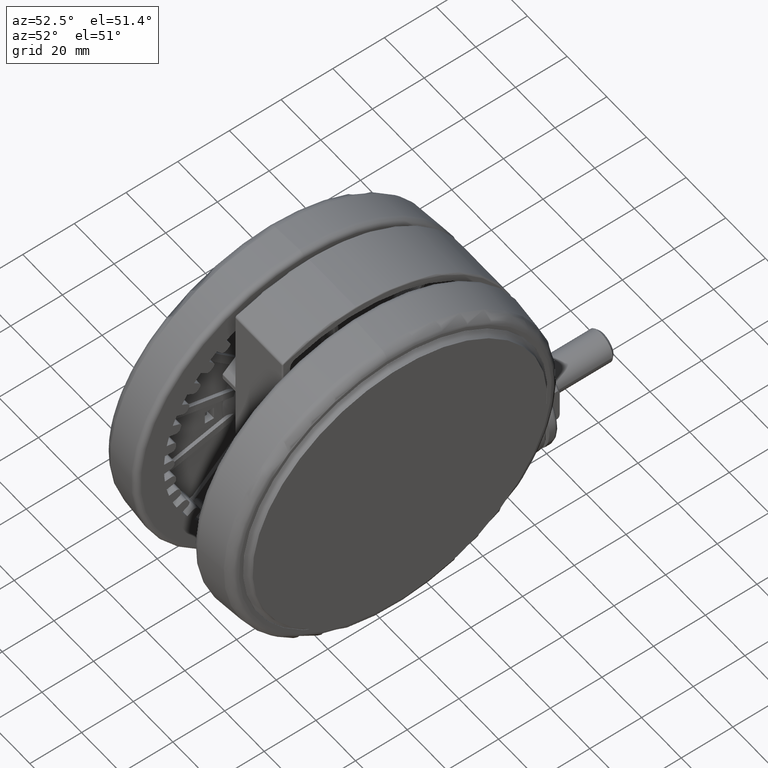
[diagram: clean part render]
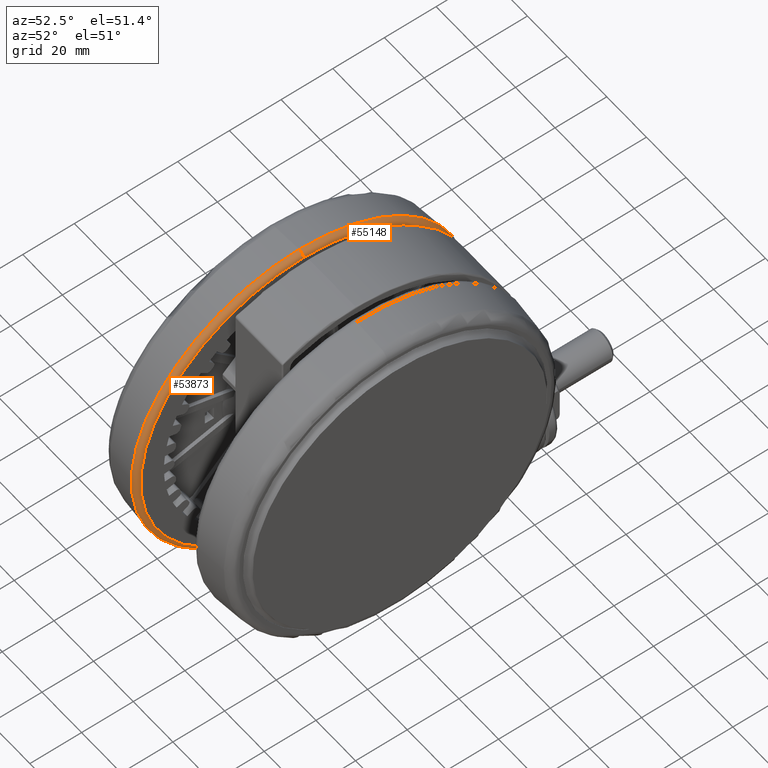
[diagram: same view with one multi-face feature highlighted, each face labeled with its STEP entity id]
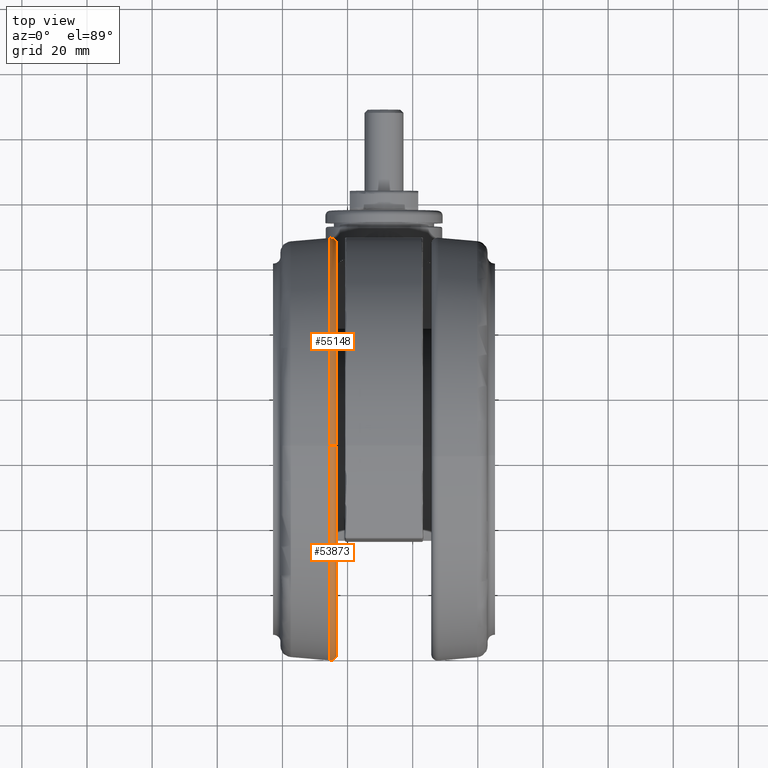
[diagram: same view with one multi-face feature highlighted, each face labeled with its STEP entity id]
A machine part, auxiliary view. The highlighted faces form ONE feature: a constant-radius fillet chain: 2 tangent blend faces with common blend radius 2 mm. The faces share edges in the B-rep.
A second angle (top view) of the same feature is appended — it is thin or edge-on in the first view.
Their STEP definitions:
[1] entity #53873 (Torus):
#99 = VERTEX_POINT ( 'NONE', #42206 ) ;
#8438 = EDGE_CURVE ( 'NONE', #17843, #43234, #31418, .T. ) ;
#12412 = DIRECTION ( 'NONE',  ( 0.0000000000000000000, 0.0000000000000000000, -1.000000000000000000 ) ) ;
#14752 = DIRECTION ( 'NONE',  ( 0.05055745222233937200, 0.9987211542892170400, 0.0000000000000000000 ) ) ;
#17452 = CIRCLE ( 'NONE', #31837, 64.99250634235662000 ) ;
#17843 = VERTEX_POINT ( 'NONE', #30883 ) ;
#20194 = CIRCLE ( 'NONE', #72682, 2.000000000000008900 ) ;
#21519 = CARTESIAN_POINT ( 'NONE',  ( -5.551115123125782700E-014, -2.602085213965210600E-014, -50.60000000000011500 ) ) ;
#21982 = AXIS2_PLACEMENT_3D ( 'NONE', #30953, #70657, #36699 ) ;
#22583 = CIRCLE ( 'NONE', #21982, 2.000000000000008900 ) ;
#27183 = DIRECTION ( 'NONE',  ( 0.0000000000000000000, 0.0000000000000000000, -1.000000000000000000 ) ) ;
#28029 = CARTESIAN_POINT ( 'NONE',  ( -5.551115123125782700E-014, -2.602085213965210600E-014, -48.60000000000010800 ) ) ;
#28726 = TOROIDAL_SURFACE ( 'NONE', #60090, 63.00000000000000000, 2.000000000000008400 ) ;
#29872 = ORIENTED_EDGE ( 'NONE', *, *, #50311, .F. ) ;
#30883 = CARTESIAN_POINT ( 'NONE',  ( 62.91943272022062000, -3.185119490007406500, -48.60000000000010800 ) ) ;
#30953 = CARTESIAN_POINT ( 'NONE',  ( -62.91943272022072600, 3.185119490007362100, -50.60000000000011500 ) ) ;
#31418 = CIRCLE ( 'NONE', #63184, 63.00000000000000700 ) ;
#31837 = AXIS2_PLACEMENT_3D ( 'NONE', #46360, #12412, #52087 ) ;
#33741 = DIRECTION ( 'NONE',  ( -0.9987211542892168200, 0.05055745222233949000, 0.0000000000000000000 ) ) ;
#34647 = CARTESIAN_POINT ( 'NONE',  ( -64.90939095438770300, 3.285855534213773000, -50.77296958018335000 ) ) ;
#36699 = DIRECTION ( 'NONE',  ( 0.9987211542892169300, -0.05055745222233955200, 0.0000000000000000000 ) ) ;
#42206 = CARTESIAN_POINT ( 'NONE',  ( 64.90939095438759000, -3.285855534213816500, -50.77296958018335000 ) ) ;
#42680 = EDGE_CURVE ( 'NONE', #17843, #99, #20194, .T. ) ;
#43234 = VERTEX_POINT ( 'NONE', #48429 ) ;
#44316 = DIRECTION ( 'NONE',  ( -0.9987211542892169300, 0.05055745222233948300, 0.0000000000000000000 ) ) ;
#45151 = VERTEX_POINT ( 'NONE', #34647 ) ;
#46360 = CARTESIAN_POINT ( 'NONE',  ( -5.551115123125782700E-014, -2.602085213965210600E-014, -50.77296958018335000 ) ) ;
#46449 = ORIENTED_EDGE ( 'NONE', *, *, #8438, .T. ) ;
#48429 = CARTESIAN_POINT ( 'NONE',  ( -62.91943272022072600, 3.185119490007362100, -48.60000000000010800 ) ) ;
#48754 = CARTESIAN_POINT ( 'NONE',  ( 62.91943272022062000, -3.185119490007406500, -50.60000000000011500 ) ) ;
#50311 = EDGE_CURVE ( 'NONE', #99, #45151, #17452, .T. ) ;
#51726 = EDGE_CURVE ( 'NONE', #43234, #45151, #22583, .T. ) ;
#52087 = DIRECTION ( 'NONE',  ( -0.9987211542892168200, 0.05055745222233948300, 0.0000000000000000000 ) ) ;
#53563 = ORIENTED_EDGE ( 'NONE', *, *, #42680, .F. ) ;
#53873 = ADVANCED_FACE ( 'NONE', ( #57153 ), #28726, .T. ) ;
#54432 = DIRECTION ( 'NONE',  ( -0.9987211542892169300, 0.05055745222233933000, 0.0000000000000000000 ) ) ;
#54502 = ORIENTED_EDGE ( 'NONE', *, *, #51726, .T. ) ;
#57153 = FACE_OUTER_BOUND ( 'NONE', #68969, .T. ) ;
#60090 = AXIS2_PLACEMENT_3D ( 'NONE', #21519, #27183, #44316 ) ;
#63184 = AXIS2_PLACEMENT_3D ( 'NONE', #28029, #67729, #33741 ) ;
#67729 = DIRECTION ( 'NONE',  ( 0.0000000000000000000, 0.0000000000000000000, -1.000000000000000000 ) ) ;
#68969 = EDGE_LOOP ( 'NONE', ( #53563, #46449, #54502, #29872 ) ) ;
#70657 = DIRECTION ( 'NONE',  ( -0.05055745222233949700, -0.9987211542892170400, -0.0000000000000000000 ) ) ;
#72682 = AXIS2_PLACEMENT_3D ( 'NONE', #48754, #14752, #54432 ) ;
[2] entity #55148 (Torus):
#99 = VERTEX_POINT ( 'NONE', #42206 ) ;
#1869 = AXIS2_PLACEMENT_3D ( 'NONE', #70159, #58766, #7950 ) ;
#7950 = DIRECTION ( 'NONE',  ( -0.9987211542892169300, 0.05055745222233948300, 0.0000000000000000000 ) ) ;
#14752 = DIRECTION ( 'NONE',  ( 0.05055745222233937200, 0.9987211542892170400, 0.0000000000000000000 ) ) ;
#17843 = VERTEX_POINT ( 'NONE', #30883 ) ;
#18798 = FACE_OUTER_BOUND ( 'NONE', #47808, .T. ) ;
#20194 = CIRCLE ( 'NONE', #72682, 2.000000000000008900 ) ;
#21982 = AXIS2_PLACEMENT_3D ( 'NONE', #30953, #70657, #36699 ) ;
#22583 = CIRCLE ( 'NONE', #21982, 2.000000000000008900 ) ;
#30883 = CARTESIAN_POINT ( 'NONE',  ( 62.91943272022062000, -3.185119490007406500, -48.60000000000010800 ) ) ;
#30953 = CARTESIAN_POINT ( 'NONE',  ( -62.91943272022072600, 3.185119490007362100, -50.60000000000011500 ) ) ;
#32616 = ORIENTED_EDGE ( 'NONE', *, *, #39070, .F. ) ;
#33605 = DIRECTION ( 'NONE',  ( 0.0000000000000000000, 0.0000000000000000000, -1.000000000000000000 ) ) ;
#33670 = CARTESIAN_POINT ( 'NONE',  ( -5.551115123125782700E-014, -2.602085213965210600E-014, -48.60000000000010800 ) ) ;
#33857 = TOROIDAL_SURFACE ( 'NONE', #1869, 63.00000000000000000, 2.000000000000008400 ) ;
#34647 = CARTESIAN_POINT ( 'NONE',  ( -64.90939095438770300, 3.285855534213773000, -50.77296958018335000 ) ) ;
#35700 = ORIENTED_EDGE ( 'NONE', *, *, #61439, .T. ) ;
#36699 = DIRECTION ( 'NONE',  ( 0.9987211542892169300, -0.05055745222233955200, 0.0000000000000000000 ) ) ;
#39070 = EDGE_CURVE ( 'NONE', #45151, #99, #44376, .T. ) ;
#39383 = DIRECTION ( 'NONE',  ( -0.9987211542892168200, 0.05055745222233949000, 0.0000000000000000000 ) ) ;
#41050 = CIRCLE ( 'NONE', #55645, 63.00000000000000700 ) ;
#42206 = CARTESIAN_POINT ( 'NONE',  ( 64.90939095438759000, -3.285855534213816500, -50.77296958018335000 ) ) ;
#42680 = EDGE_CURVE ( 'NONE', #17843, #99, #20194, .T. ) ;
#43234 = VERTEX_POINT ( 'NONE', #48429 ) ;
#44376 = CIRCLE ( 'NONE', #59682, 64.99250634235662000 ) ;
#45151 = VERTEX_POINT ( 'NONE', #34647 ) ;
#45192 = ORIENTED_EDGE ( 'NONE', *, *, #51726, .F. ) ;
#47414 = ORIENTED_EDGE ( 'NONE', *, *, #42680, .T. ) ;
#47808 = EDGE_LOOP ( 'NONE', ( #35700, #47414, #32616, #45192 ) ) ;
#48429 = CARTESIAN_POINT ( 'NONE',  ( -62.91943272022072600, 3.185119490007362100, -48.60000000000010800 ) ) ;
#48754 = CARTESIAN_POINT ( 'NONE',  ( 62.91943272022062000, -3.185119490007406500, -50.60000000000011500 ) ) ;
#51726 = EDGE_CURVE ( 'NONE', #43234, #45151, #22583, .T. ) ;
#54432 = DIRECTION ( 'NONE',  ( -0.9987211542892169300, 0.05055745222233933000, 0.0000000000000000000 ) ) ;
#55148 = ADVANCED_FACE ( 'NONE', ( #18798 ), #33857, .T. ) ;
#55645 = AXIS2_PLACEMENT_3D ( 'NONE', #33670, #73346, #39383 ) ;
#58766 = DIRECTION ( 'NONE',  ( 0.0000000000000000000, 0.0000000000000000000, -1.000000000000000000 ) ) ;
#59682 = AXIS2_PLACEMENT_3D ( 'NONE', #67600, #33605, #73267 ) ;
#61439 = EDGE_CURVE ( 'NONE', #43234, #17843, #41050, .T. ) ;
#67600 = CARTESIAN_POINT ( 'NONE',  ( -5.551115123125782700E-014, -2.602085213965210600E-014, -50.77296958018335000 ) ) ;
#70159 = CARTESIAN_POINT ( 'NONE',  ( -5.551115123125782700E-014, -2.602085213965210600E-014, -50.60000000000011500 ) ) ;
#70657 = DIRECTION ( 'NONE',  ( -0.05055745222233949700, -0.9987211542892170400, -0.0000000000000000000 ) ) ;
#72682 = AXIS2_PLACEMENT_3D ( 'NONE', #48754, #14752, #54432 ) ;
#73267 = DIRECTION ( 'NONE',  ( -0.9987211542892168200, 0.05055745222233948300, 0.0000000000000000000 ) ) ;
#73346 = DIRECTION ( 'NONE',  ( 0.0000000000000000000, 0.0000000000000000000, -1.000000000000000000 ) ) ;